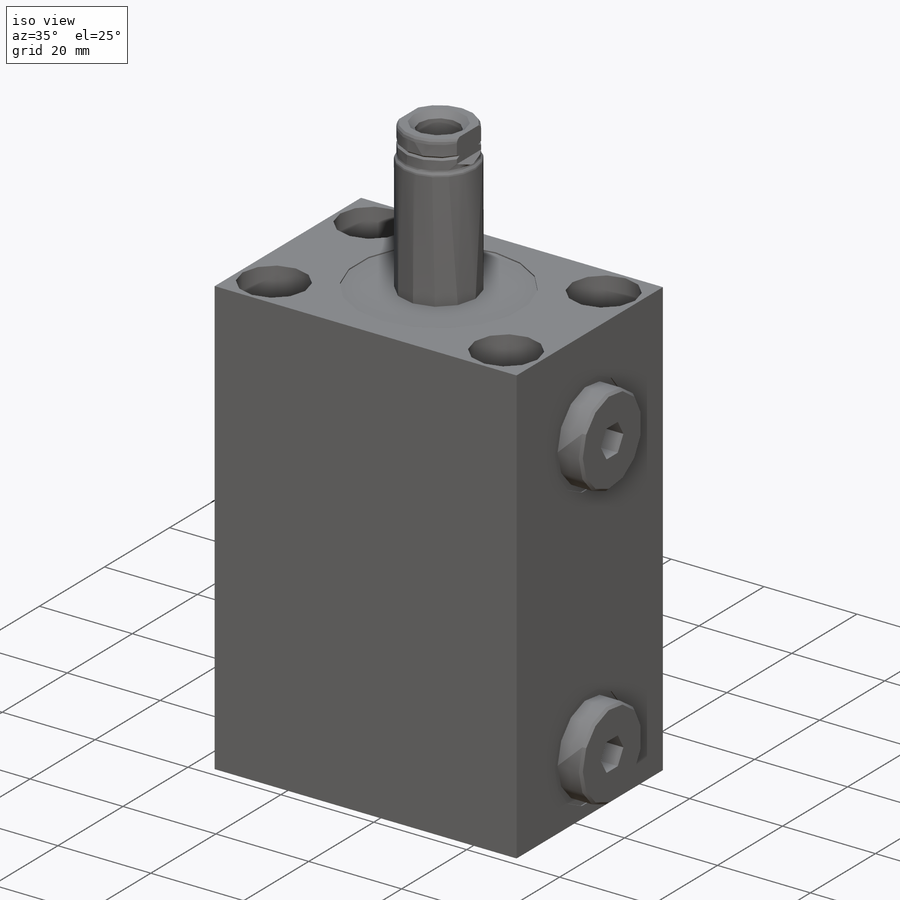
[diagram: iso view]
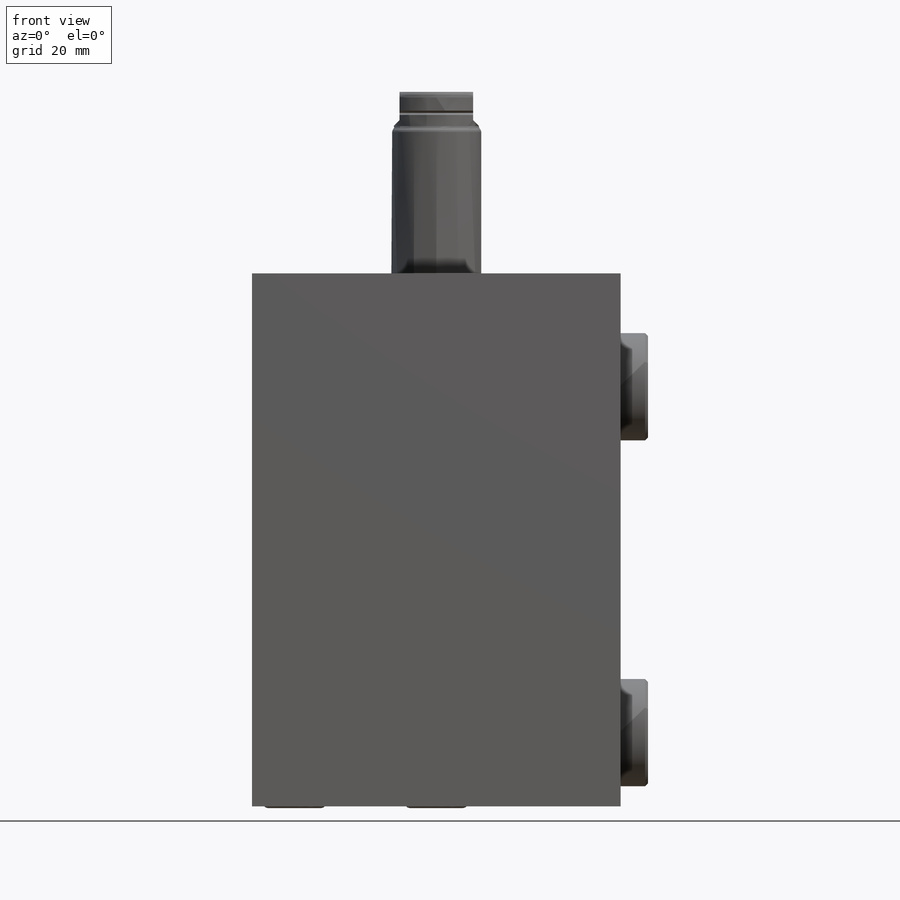
[diagram: front view]
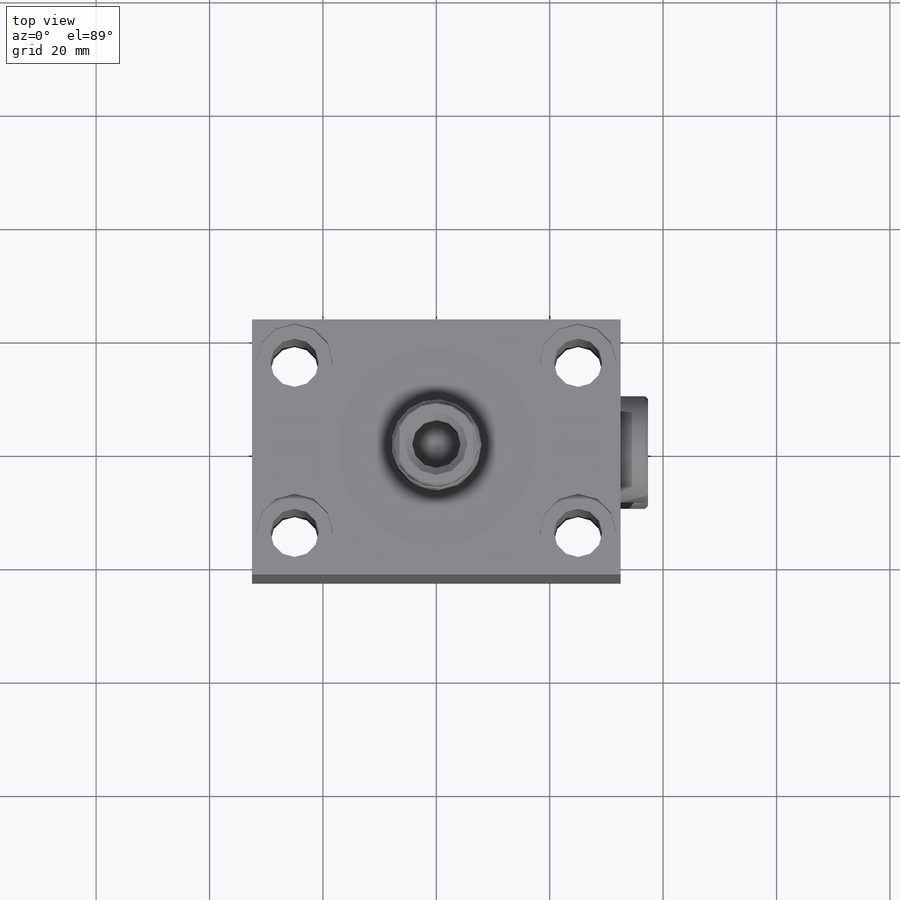
[diagram: top view]
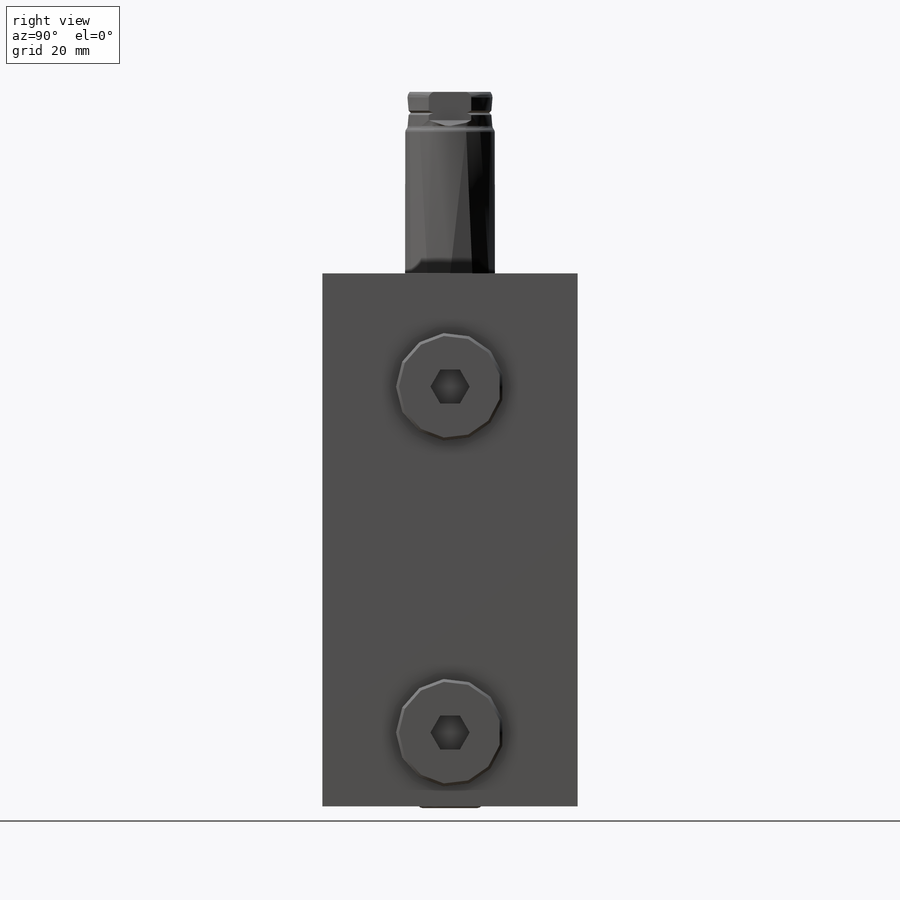
[diagram: right view]
SOLIDWORKS PART (.sldprt)
format: sldprt  version: not decoded by parser v0  size: 315,904 bytes
history: native  units: mm
features: sketch x13, cut_revolve x4, cut_extrude x3, revolve x3, pattern_linear x2, material x1, extrude x1, chamfer x1, hole x1 (+13 scaffold rows collapsed)
feature tree (42):
  scaffold x13  (default folders/planes/origin — collapsed)
  material  "Alloy Steel"
  sketch  "Sketch1"  dims[D1=65.0mm D2=45.0mm]
  extrude  "Extrude1"  Depth=94mm
  sketch  "Sketch2"  dims[D1=35.0mm]
  cut_extrude  "Cut-Extrude1"  Depth=0.254mm
  sketch  "Sketch3"  dims[c1.D1=74.0mm c1.D2=21.488mm c1.D3=0.254mm c1.D4=11.8872mm c1.D5=15.748mm c1.D6=~4.030476mm c2.D6=45.0deg c2.D7=0.7112mm]
  cut_revolve  "Cut-Revolve1"  Angle=360deg
  sketch  "Sketch4"  dims[D1=11.938mm D2=11.8364mm D3=5.08mm D4=19.05mm]
  revolve  "Revolve1"  Angle=360deg
  chamfer  "Chamfer1"  Distance=0.508mm Angle=45deg
  sketch  "Sketch5"  dims[D1=5.9944mm]
  cut_extrude  "Cut-Extrude2"  Depth=5.9944mm
  pattern_linear  "LPattern1"  Count1=2 Count2=1 Spacing1=61mm Spacing2=10mm
  sketch  "Sketch6"  dims[c1.D1=1.448mm c1.D2=2.997mm c2.D1=~1.451992mm c3.D1=59.0deg c3.D2=~14.895831mm c3.D3=2.4892mm c3.D4=11.405mm c3.D5=1.448mm c3.D6=6.5024mm c3.D7=4.445mm c3.D8=~0.718279mm c4.D8=45.0deg c4.D9=0.5079mm]
  cut_revolve  "Cut-Revolve2"  Angle=360deg
  sketch  "Sketch7"  dims[c1.D1=~5.217983mm c1.D2=1.778mm c2.D1=9.628mm c2.D3=0.5844mm]
  revolve  "Revolve3"  Angle=360deg
  pattern_linear  "LPattern2"  Count1=2 Count2=1 Spacing1=25mm Spacing2=10mm
  sketch  "Sketch8"  dims[D1=1.524mm D7=0.762mm D8=0.762mm D2=6.0mm D3=126.0mm D4=0.9906mm D5=15.0mm D6=15.85mm]
  revolve  "Revolve4"  Angle=360deg
  sketch  "Sketch10"  dims[c1.D1=~1.550685mm c2.D1=45.0deg c2.D2=1.233mm c2.D3=8.534mm c2.D4=3.4035mm c3.D4=59.0deg c3.D5=20.32mm]
  cut_revolve  "Cut-Revolve3"  Angle=360deg
  sketch  "Sketch11"  dims[c1.D1=0.762mm c1.D2=3.683mm c1.D3=0.381mm c2.D3=90.0deg]
  cut_revolve  "Cut-Revolve4"  Angle=360deg
  sketch  "Sketch12"  dims[c1.D1=13.0mm c1.D2=~3.432231mm c2.D2=45.0deg c2.D3=5.0mm]
  cut_extrude  "Cut-Extrude3"  [1 undecoded]
  hole  "Hole1"  Diameter=8.509mm Depth=94.3046mm
  sketch  "Sketch14"  dims[D1=30.0mm D2=50.0mm]
  sketch  "Sketch13"  dims[Diameter=8.509mm Depth=94.3046mm C-Bore Diameter=13.487mm C-Bore Depth=8.509mm]
decode coverage: 27 of 28 modeling features carry decoded parameters
note: ~ marks probable driven/reference dimensions
note: 1 parameter value undecoded
note: suppression state not decoded; provenance and decode notes live in map.json
